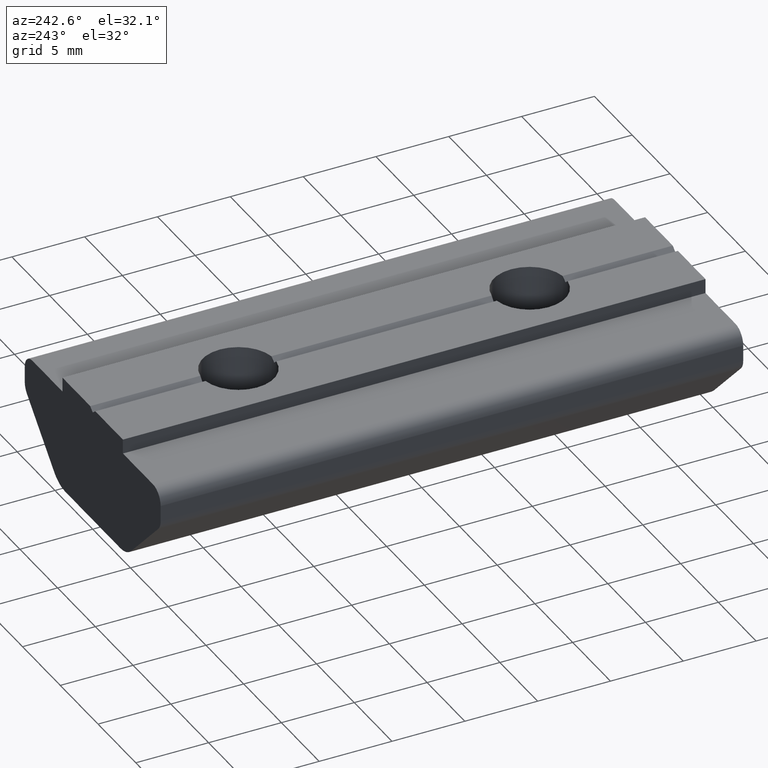
[diagram: clean part render]
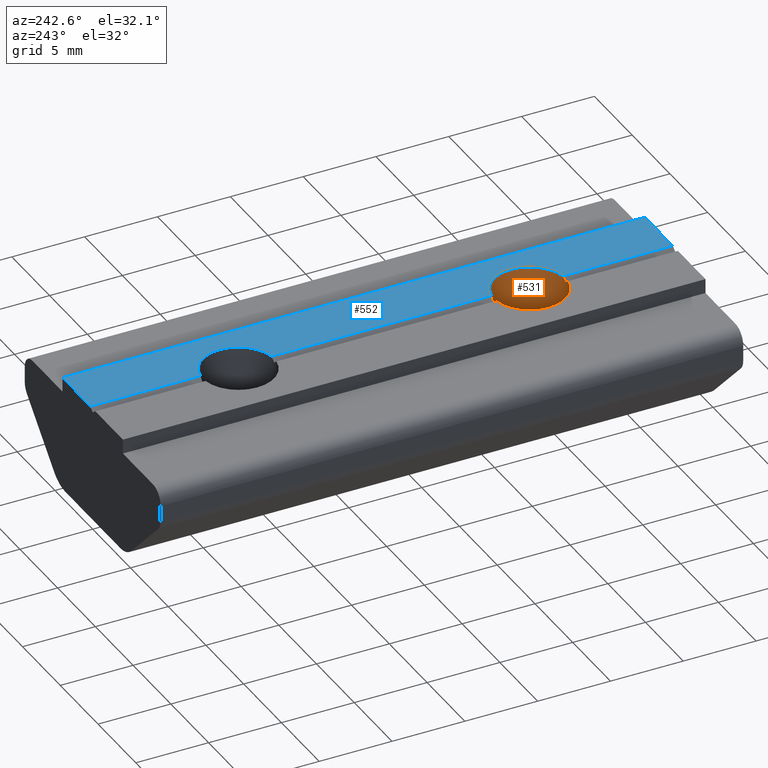
[diagram: same view with the hole feature highlighted: cylindrical wall and planar end face, labeled with their STEP entity ids]
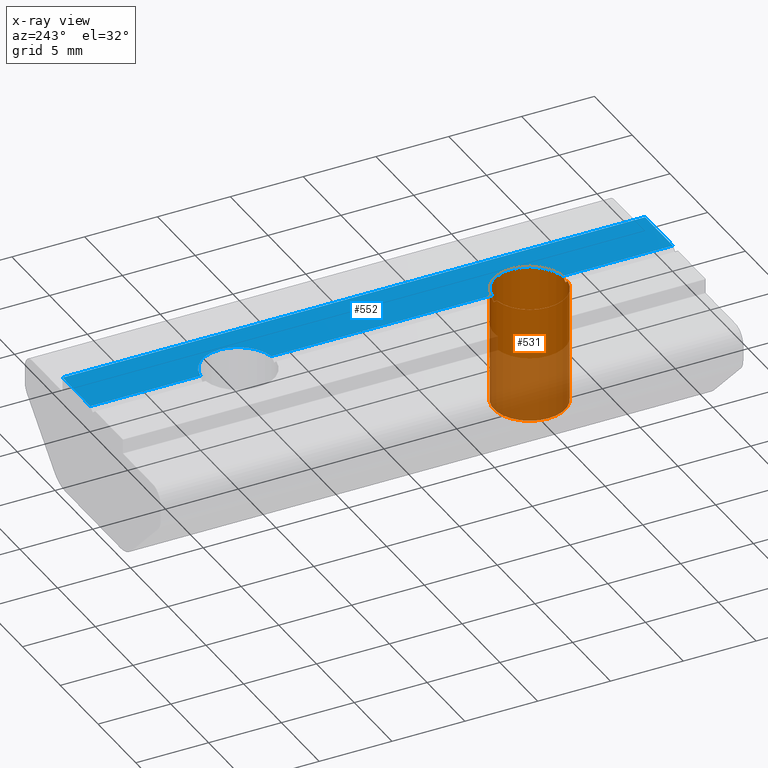
[diagram: x-ray of the same camera — body ghosted, the hole faces saturated]
A machine part, auxiliary view. The highlighted faces form one hole feature of diameter 4.917 mm: the cylindrical wall (entity #531, orange) and its adjacent planar end face (entity #552, blue) — they share a circular edge in the B-rep.
The next image is the same camera in x-ray (body ghosted, the hole faces saturated) — the bore reads through the body.
Wall:
#36=FACE_OUTER_BOUND('',#63,.T.);
#63=EDGE_LOOP('',(#361,#362,#363,#364,#365,#366,#367,#368,#369,#370));
#92=LINE('',#817,#145);
#145=VECTOR('',#652,2.4585);
#198=CIRCLE('',#584,2.4585);
#199=CIRCLE('',#587,2.4585);
#200=CIRCLE('',#588,2.4585);
#201=CIRCLE('',#589,2.4585);
#218=ELLIPSE('',#582,3.14676989404295,2.4585);
#219=ELLIPSE('',#583,3.20333895379445,2.4585);
#220=ELLIPSE('',#585,3.20333895379445,2.4585);
#221=ELLIPSE('',#586,3.14676989404295,2.4585);
#226=VERTEX_POINT('',#803);
#227=VERTEX_POINT('',#804);
#228=VERTEX_POINT('',#806);
#229=VERTEX_POINT('',#808);
#230=VERTEX_POINT('',#810);
#231=VERTEX_POINT('',#812);
#232=VERTEX_POINT('',#814);
#233=VERTEX_POINT('',#816);
#280=EDGE_CURVE('',#226,#227,#218,.T.);
#281=EDGE_CURVE('',#228,#226,#219,.T.);
#282=EDGE_CURVE('',#229,#228,#198,.T.);
#283=EDGE_CURVE('',#230,#229,#220,.T.);
#284=EDGE_CURVE('',#231,#230,#221,.T.);
#285=EDGE_CURVE('',#232,#231,#199,.T.);
#286=EDGE_CURVE('',#232,#233,#92,.T.);
#287=EDGE_CURVE('',#233,#233,#200,.T.);
#288=EDGE_CURVE('',#227,#232,#201,.T.);
#361=ORIENTED_EDGE('',*,*,#280,.F.);
#362=ORIENTED_EDGE('',*,*,#281,.F.);
#363=ORIENTED_EDGE('',*,*,#282,.F.);
#364=ORIENTED_EDGE('',*,*,#283,.F.);
#365=ORIENTED_EDGE('',*,*,#284,.F.);
#366=ORIENTED_EDGE('',*,*,#285,.F.);
#367=ORIENTED_EDGE('',*,*,#286,.T.);
#368=ORIENTED_EDGE('',*,*,#287,.F.);
#369=ORIENTED_EDGE('',*,*,#286,.F.);
#370=ORIENTED_EDGE('',*,*,#288,.F.);
#523=CYLINDRICAL_SURFACE('',#581,2.4585);
#531=ADVANCED_FACE('',(#36),#523,.F.);
#581=AXIS2_PLACEMENT_3D('',#802,#638,#639);
#582=AXIS2_PLACEMENT_3D('',#805,#640,#641);
#583=AXIS2_PLACEMENT_3D('',#807,#642,#643);
#584=AXIS2_PLACEMENT_3D('',#809,#644,#645);
#585=AXIS2_PLACEMENT_3D('',#811,#646,#647);
#586=AXIS2_PLACEMENT_3D('',#813,#648,#649);
#587=AXIS2_PLACEMENT_3D('',#815,#650,#651);
#588=AXIS2_PLACEMENT_3D('',#818,#653,#654);
#589=AXIS2_PLACEMENT_3D('',#819,#655,#656);
#638=DIRECTION('center_axis',(0.,0.,1.));
#639=DIRECTION('ref_axis',(1.,0.,0.));
#640=DIRECTION('center_axis',(-0.624184046708014,-4.783944E-17,-0.781277336056287));
#641=DIRECTION('ref_axis',(0.781277336056287,0.,-0.624184046708014));
#642=DIRECTION('center_axis',(0.641072358860515,-4.699462E-17,-0.767480443206871));
#643=DIRECTION('ref_axis',(0.767480443206871,0.,0.641072358860515));
#644=DIRECTION('center_axis',(2.723567E-9,-6.123234E-17,-1.));
#645=DIRECTION('ref_axis',(1.,0.,2.723567E-9));
#646=DIRECTION('center_axis',(0.641072358860515,-4.699462E-17,-0.767480443206871));
#647=DIRECTION('ref_axis',(0.767480443206871,0.,0.641072358860515));
#648=DIRECTION('center_axis',(-0.624184046708014,-4.783944E-17,-0.781277336056287));
#649=DIRECTION('ref_axis',(0.781277336056287,0.,-0.624184046708014));
#650=DIRECTION('center_axis',(0.,0.,-1.));
#651=DIRECTION('ref_axis',(1.,0.,0.));
#652=DIRECTION('',(0.,0.,-1.));
#653=DIRECTION('center_axis',(0.,0.,1.));
#654=DIRECTION('ref_axis',(1.,0.,0.));
#655=DIRECTION('center_axis',(0.,0.,-1.));
#656=DIRECTION('ref_axis',(1.,0.,0.));
#802=CARTESIAN_POINT('Origin',(0.,0.,-36.5869934551465));
#803=CARTESIAN_POINT('',(8.015661E-9,-2.4585,7.72573707488596));
#804=CARTESIAN_POINT('',(-0.343286605774692,-2.43441503369818,7.99999823400003));
#805=CARTESIAN_POINT('Origin',(0.,0.,7.72573708128989));
#806=CARTESIAN_POINT('',(0.328340585124039,-2.43647587924863,7.99999822400003));
#807=CARTESIAN_POINT('Origin',(0.,0.,7.72573706819052));
#808=CARTESIAN_POINT('',(0.328340585124039,2.43647587924863,7.99999822400002));
#809=CARTESIAN_POINT('Origin',(0.,0.,7.99999822310577));
#810=CARTESIAN_POINT('',(8.015661E-9,2.4585,7.72573707488596));
#811=CARTESIAN_POINT('Origin',(0.,0.,7.72573706819052));
#812=CARTESIAN_POINT('',(-0.343286605774692,2.43441503369818,7.99999823400003));
#813=CARTESIAN_POINT('Origin',(0.,0.,7.72573708128989));
#814=CARTESIAN_POINT('',(-2.4585,-3.01079415570377E-16,7.99999823400003));
#815=CARTESIAN_POINT('Origin',(0.,0.,7.99999823400003));
#816=CARTESIAN_POINT('',(-2.4585,-3.01079415570377E-16,0.));
#817=CARTESIAN_POINT('',(-2.4585,-3.01079415570377E-16,-36.5869934551465));
#818=CARTESIAN_POINT('Origin',(0.,0.,0.));
#819=CARTESIAN_POINT('Origin',(0.,0.,7.99999823400003));
End face:
#30=PLANE('',#630);
#57=FACE_OUTER_BOUND('',#86,.T.);
#86=EDGE_LOOP('',(#465,#466,#467,#468,#469,#470,#471,#472));
#101=LINE('',#852,#154);
#104=LINE('',#859,#157);
#135=LINE('',#946,#188);
#137=LINE('',#950,#190);
#138=LINE('',#951,#191);
#139=LINE('',#952,#192);
#154=VECTOR('',#689,15.0433105967146);
#157=VECTOR('',#696,7.52165529835731);
#188=VECTOR('',#779,40.);
#190=VECTOR('',#783,7.5216552983573);
#191=VECTOR('',#784,3.67165853489162);
#192=VECTOR('',#785,3.67165853489162);
#198=CIRCLE('',#584,2.4585);
#202=CIRCLE('',#593,2.4585);
#228=VERTEX_POINT('',#806);
#229=VERTEX_POINT('',#808);
#236=VERTEX_POINT('',#824);
#237=VERTEX_POINT('',#826);
#247=VERTEX_POINT('',#858);
#276=VERTEX_POINT('',#943);
#277=VERTEX_POINT('',#945);
#278=VERTEX_POINT('',#949);
#282=EDGE_CURVE('',#229,#228,#198,.T.);
#291=EDGE_CURVE('',#237,#236,#202,.T.);
#305=EDGE_CURVE('',#236,#229,#101,.T.);
#308=EDGE_CURVE('',#247,#237,#104,.T.);
#351=EDGE_CURVE('',#276,#277,#135,.T.);
#353=EDGE_CURVE('',#228,#278,#137,.T.);
#354=EDGE_CURVE('',#277,#278,#138,.T.);
#355=EDGE_CURVE('',#276,#247,#139,.T.);
#465=ORIENTED_EDGE('',*,*,#282,.T.);
#466=ORIENTED_EDGE('',*,*,#353,.T.);
#467=ORIENTED_EDGE('',*,*,#354,.F.);
#468=ORIENTED_EDGE('',*,*,#351,.F.);
#469=ORIENTED_EDGE('',*,*,#355,.T.);
#470=ORIENTED_EDGE('',*,*,#308,.T.);
#471=ORIENTED_EDGE('',*,*,#291,.T.);
#472=ORIENTED_EDGE('',*,*,#305,.T.);
#552=ADVANCED_FACE('',(#57),#30,.T.);
#584=AXIS2_PLACEMENT_3D('',#809,#644,#645);
#593=AXIS2_PLACEMENT_3D('',#827,#663,#664);
#630=AXIS2_PLACEMENT_3D('',#948,#781,#782);
#644=DIRECTION('center_axis',(2.723567E-9,-6.123234E-17,-1.));
#645=DIRECTION('ref_axis',(1.,0.,2.723567E-9));
#663=DIRECTION('center_axis',(2.723567E-9,-6.123234E-17,-1.));
#664=DIRECTION('ref_axis',(1.,0.,2.723567E-9));
#689=DIRECTION('',(0.,-1.,0.));
#696=DIRECTION('',(0.,-1.,0.));
#779=DIRECTION('',(0.,-1.,0.));
#781=DIRECTION('center_axis',(-2.723567E-9,6.123234E-17,1.));
#782=DIRECTION('ref_axis',(1.,0.,2.723567E-9));
#783=DIRECTION('',(0.,-1.,0.));
#784=DIRECTION('',(-1.,0.,-2.72356715743994E-9));
#785=DIRECTION('',(-1.,0.,-2.72356685506351E-9));
#806=CARTESIAN_POINT('',(0.328340585124039,-2.43647587924863,7.99999822400003));
#808=CARTESIAN_POINT('',(0.328340585124039,2.43647587924863,7.99999822400002));
#809=CARTESIAN_POINT('Origin',(0.,0.,7.99999822310577));
#824=CARTESIAN_POINT('',(0.328340585124039,17.5635241207514,7.99999822400002));
#826=CARTESIAN_POINT('',(0.328340585124039,22.4364758792486,7.99999822400002));
#827=CARTESIAN_POINT('Origin',(0.,20.,7.99999822310577));
#852=CARTESIAN_POINT('',(0.328340585124039,17.5216552983573,7.99999822400002));
#858=CARTESIAN_POINT('',(0.328340585124039,30.,7.99999822400002));
#859=CARTESIAN_POINT('',(0.328340585124039,30.,7.99999822400002));
#943=CARTESIAN_POINT('',(3.99999912001566,30.,7.99999823400003));
#945=CARTESIAN_POINT('',(3.99999912001566,-10.,7.99999823400003));
#946=CARTESIAN_POINT('',(3.99999912001566,30.,7.99999823400003));
#948=CARTESIAN_POINT('Origin',(3.99999912001566,30.,7.99999823400003));
#949=CARTESIAN_POINT('',(0.328340585124039,-10.,7.99999822400003));
#950=CARTESIAN_POINT('',(0.328340585124039,-2.4783447016427,7.99999822400003));
#951=CARTESIAN_POINT('',(3.99999912001566,-10.,7.99999823400003));
#952=CARTESIAN_POINT('',(3.99999912001566,30.,7.99999823400003));